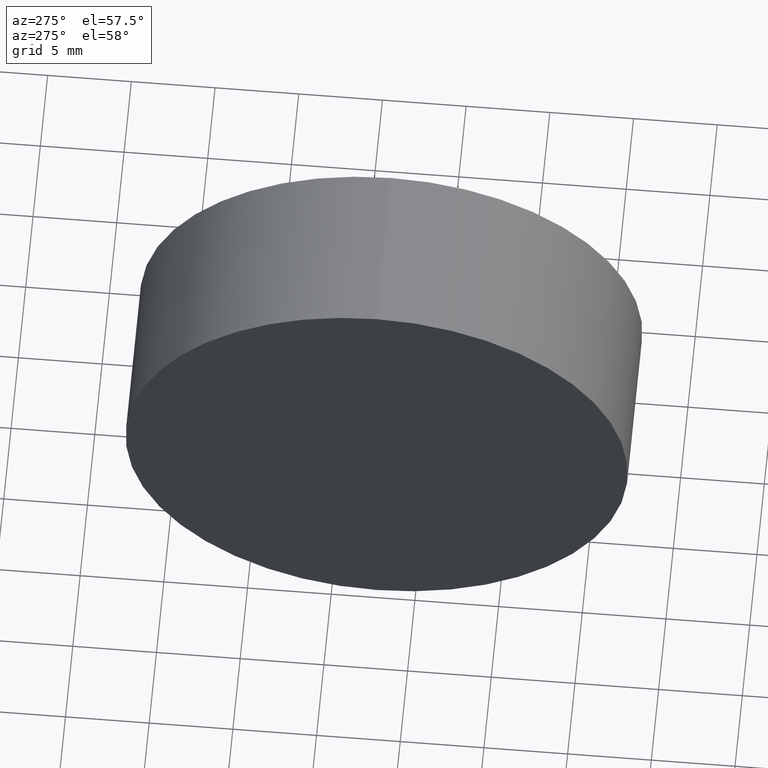
[diagram: clean part render]
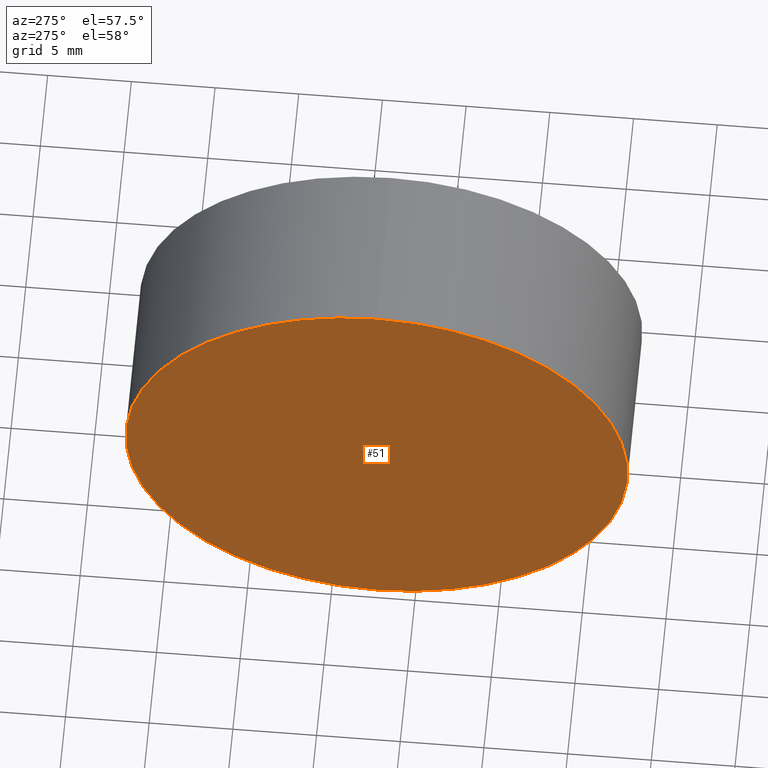
[diagram: same view with one face highlighted and labeled with its STEP entity id]
A machine part, auxiliary view. The second image highlights one B-rep face of the part: STEP entity #51.
In plain terms, the highlighted planar face has unit normal (1, 0, 0).
Its self-contained STEP definition (entity closure, byte-faithful):
#5 = AXIS2_PLACEMENT_3D ( 'NONE', #106, #115, #88 ) ;
#13 = CARTESIAN_POINT ( 'NONE',  ( 260.1163036661670800, 77.29317934901541800, 0.0000000000000000000 ) ) ;
#19 = PLANE ( 'NONE',  #38 ) ;
#22 = CIRCLE ( 'NONE', #29, 15.00000000000000000 ) ;
#23 = ORIENTED_EDGE ( 'NONE', *, *, #87, .T. ) ;
#29 = AXIS2_PLACEMENT_3D ( 'NONE', #128, #89, #107 ) ;
#30 = EDGE_CURVE ( 'NONE', #63, #41, #104, .T. ) ;
#38 = AXIS2_PLACEMENT_3D ( 'NONE', #13, #39, #114 ) ;
#39 = DIRECTION ( 'NONE',  ( 1.000000000000000000, 0.0000000000000000000, 0.0000000000000000000 ) ) ;
#41 = VERTEX_POINT ( 'NONE', #92 ) ;
#42 = CARTESIAN_POINT ( 'NONE',  ( 260.1163036661670800, 77.29317934901541800, -15.00000000000000000 ) ) ;
#45 = EDGE_LOOP ( 'NONE', ( #23, #139 ) ) ;
#51 = ADVANCED_FACE ( 'NONE', ( #138 ), #19, .F. ) ;
#63 = VERTEX_POINT ( 'NONE', #42 ) ;
#87 = EDGE_CURVE ( 'NONE', #41, #63, #22, .T. ) ;
#88 = DIRECTION ( 'NONE',  ( 0.0000000000000000000, 0.0000000000000000000, 1.000000000000000000 ) ) ;
#89 = DIRECTION ( 'NONE',  ( -1.000000000000000000, -0.0000000000000000000, -0.0000000000000000000 ) ) ;
#92 = CARTESIAN_POINT ( 'NONE',  ( 260.1163036661670800, 77.29317934901541800, 15.00000000000000000 ) ) ;
#104 = CIRCLE ( 'NONE', #5, 15.00000000000000000 ) ;
#106 = CARTESIAN_POINT ( 'NONE',  ( 260.1163036661670800, 77.29317934901541800, 0.0000000000000000000 ) ) ;
#107 = DIRECTION ( 'NONE',  ( 0.0000000000000000000, 0.0000000000000000000, 1.000000000000000000 ) ) ;
#114 = DIRECTION ( 'NONE',  ( 0.0000000000000000000, 0.0000000000000000000, -1.000000000000000000 ) ) ;
#115 = DIRECTION ( 'NONE',  ( -1.000000000000000000, -0.0000000000000000000, -0.0000000000000000000 ) ) ;
#128 = CARTESIAN_POINT ( 'NONE',  ( 260.1163036661670800, 77.29317934901541800, 0.0000000000000000000 ) ) ;
#138 = FACE_OUTER_BOUND ( 'NONE', #45, .T. ) ;
#139 = ORIENTED_EDGE ( 'NONE', *, *, #30, .T. ) ;